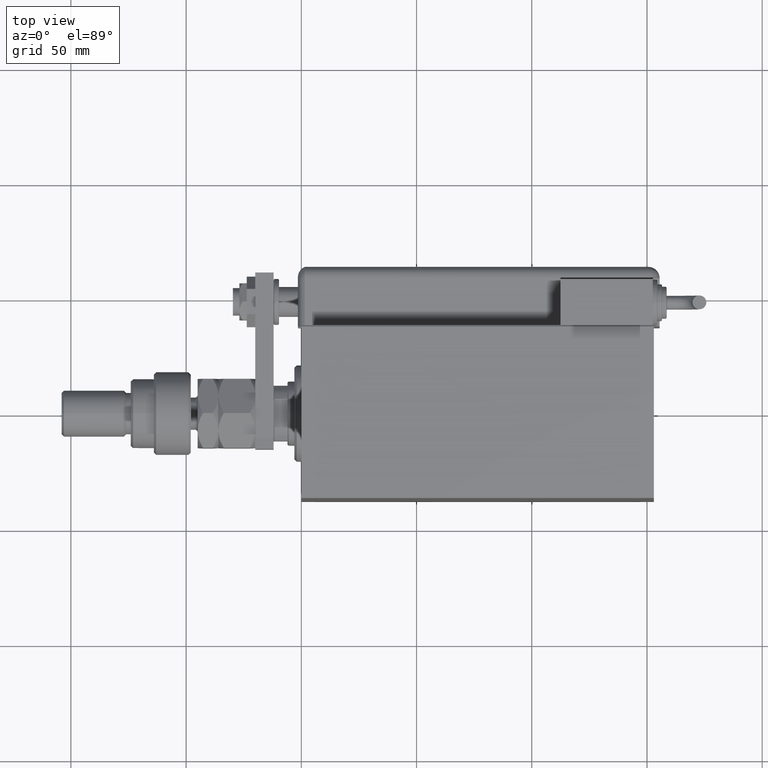
[diagram: clean part render]
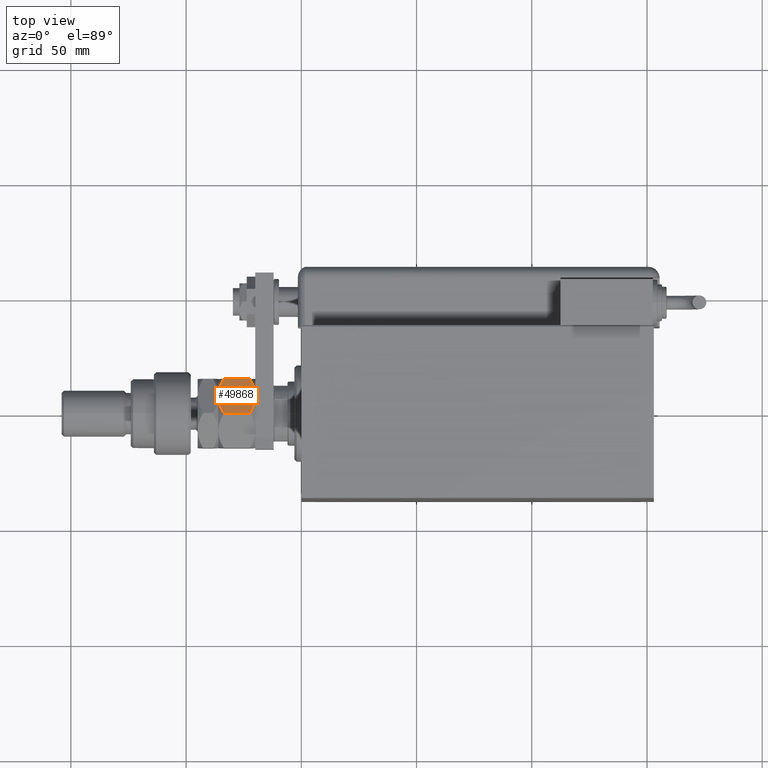
[diagram: same view with one face highlighted and labeled with its STEP entity id]
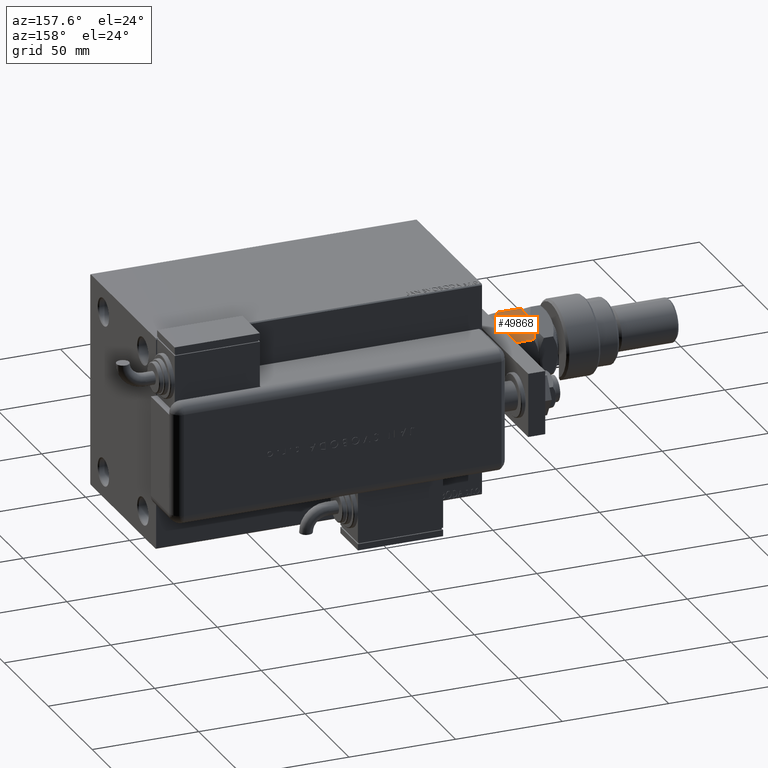
[diagram: same view with one face highlighted and labeled with its STEP entity id]
A machine part, top view. The second image highlights one B-rep face of the part: STEP entity #49868.
A second angle (auxiliary view) of the same face is appended — the face is thin or edge-on in the first view.
In plain terms, the highlighted planar face has unit normal (-0, -0.5, -0.866).
Its self-contained STEP definition (entity closure, byte-faithful):
#367 = CARTESIAN_POINT ( 'NONE',  ( 7.621669386706803087E-17, 17.32050807568877104, 2.320508075688761718 ) ) ;
#1358 = EDGE_CURVE ( 'NONE', #15728, #30181, #16495, .T. ) ;
#3231 = CARTESIAN_POINT ( 'NONE',  ( 8.156876182308252510, 12.61113341608665728, 16.00000000000000355 ) ) ;
#3999 = FACE_OUTER_BOUND ( 'NONE', #27716, .T. ) ;
#4077 = CARTESIAN_POINT ( 'NONE',  ( 15.00000000000000000, 8.660254037844389075, 2.320508075688765715 ) ) ;
#4185 = CARTESIAN_POINT ( 'NONE',  ( 6.176419610670692784, 13.75455055083996214, 0.05953537397470201609 ) ) ;
#4759 = EDGE_CURVE ( 'NONE', #23420, #25818, #10175, .T. ) ;
#7951 = CARTESIAN_POINT ( 'NONE',  ( 0.000000000000000000, 17.32050807568877104, 16.00000000000000000 ) ) ;
#8025 = CARTESIAN_POINT ( 'NONE',  ( 10.75222765045651663, 11.11270654730956586, 15.55242859148697576 ) ) ;
#9641 = CARTESIAN_POINT ( 'NONE',  ( 1.174746544192161846, 16.64226784216984356, 14.35773215783022572 ) ) ;
#10175 = B_SPLINE_CURVE_WITH_KNOTS ( 'NONE', 3,
 ( #367, #43412, #29380, #19812, #57155, #4185, #13446, #32887 ),
 .UNSPECIFIED., .F., .F.,
 ( 4, 2, 2, 4 ),
 ( 2.544309033652185071E-07, 0.004488823491893902638, 0.006733108022389172782, 0.008977392552884443794 ),
 .UNSPECIFIED. ) ;
#13446 = CARTESIAN_POINT ( 'NONE',  ( 6.843123817691747490, 13.36962869744650639, -3.557538378468061917E-16 ) ) ;
#13815 = CARTESIAN_POINT ( 'NONE',  ( 7.621669386706803087E-17, 17.32050807568877104, 2.320508075688761718 ) ) ;
#15255 = AXIS2_PLACEMENT_3D ( 'NONE', #32394, #38098, #52799 ) ;
#15610 = EDGE_CURVE ( 'NONE', #30181, #46132, #18228, .T. ) ;
#15671 = CARTESIAN_POINT ( 'NONE',  ( 6.195449321423087241, 13.74356374221446764, 16.00000000000000355 ) ) ;
#15728 = VERTEX_POINT ( 'NONE', #44989 ) ;
#16495 = B_SPLINE_CURVE_WITH_KNOTS ( 'NONE', 3,
 ( #61291, #22677, #51717, #8025, #46918, #61603, #3231, #37343 ),
 .UNSPECIFIED., .F., .F.,
 ( 4, 2, 2, 4 ),
 ( 2.544309033641602453E-07, 0.004488823491893906975, 0.006733108022389177119, 0.008977392552884448998 ),
 .UNSPECIFIED. ) ;
#17759 = EDGE_CURVE ( 'NONE', #46132, #23420, #52257, .T. ) ;
#18228 = B_SPLINE_CURVE_WITH_KNOTS ( 'NONE', 3,
 ( #19839, #15671, #34811, #58770, #9641, #23980 ),
 .UNSPECIFIED., .F., .F.,
 ( 4, 2, 4 ),
 ( 0.008977392552884448998, 0.01343452311421656706, 0.01789165367554868338 ),
 .UNSPECIFIED. ) ;
#18642 = ORIENTED_EDGE ( 'NONE', *, *, #26523, .F. ) ;
#19812 = CARTESIAN_POINT ( 'NONE',  ( 4.247772349543482484, 14.86805556622358893, 0.4475714085130255149 ) ) ;
#19839 = CARTESIAN_POINT ( 'NONE',  ( 7.500000000000000000, 12.99038105676657651, 16.00000000000000000 ) ) ;
#20057 = ORIENTED_EDGE ( 'NONE', *, *, #4759, .F. ) ;
#22677 = CARTESIAN_POINT ( 'NONE',  ( 13.82389157469336283, 9.339280553791368789, 14.35851844025821400 ) ) ;
#23420 = VERTEX_POINT ( 'NONE', #13815 ) ;
#23950 = VERTEX_POINT ( 'NONE', #34500 ) ;
#23980 = CARTESIAN_POINT ( 'NONE',  ( 3.803331551779305683E-16, 17.32050807568877104, 13.67949192431124317 ) ) ;
#25818 = VERTEX_POINT ( 'NONE', #60105 ) ;
#26523 = EDGE_CURVE ( 'NONE', #25818, #23950, #56193, .T. ) ;
#27389 = DIRECTION ( 'NONE',  ( -0.000000000000000000, -0.000000000000000000, -1.000000000000000000 ) ) ;
#27716 = EDGE_LOOP ( 'NONE', ( #20057, #32230, #48438, #48421, #60080, #18642 ) ) ;
#28306 = CARTESIAN_POINT ( 'NONE',  ( 13.82525345580783949, 9.338494271363313004, 1.642267842169781833 ) ) ;
#29246 = CARTESIAN_POINT ( 'NONE',  ( 7.500000000000000000, 12.99038105676657651, 16.00000000000000000 ) ) ;
#29380 = CARTESIAN_POINT ( 'NONE',  ( 2.378834511187503331, 15.94708733029709080, 1.064486067744004671 ) ) ;
#30181 = VERTEX_POINT ( 'NONE', #29246 ) ;
#32230 = ORIENTED_EDGE ( 'NONE', *, *, #17759, .F. ) ;
#32394 = CARTESIAN_POINT ( 'NONE',  ( 15.00000000000000000, 8.660254037844389075, 16.00000000000000000 ) ) ;
#32887 = CARTESIAN_POINT ( 'NONE',  ( 7.499999999999997335, 12.99038105676658184, 0.000000000000000000 ) ) ;
#34500 = CARTESIAN_POINT ( 'NONE',  ( 15.00000000000000000, 8.660254037844389075, 2.320508075688765715 ) ) ;
#34811 = CARTESIAN_POINT ( 'NONE',  ( 4.913081180497409939, 14.48393933357810504, 15.76967007806078946 ) ) ;
#35596 = LINE ( 'NONE', #47839, #55969 ) ;
#36681 = CARTESIAN_POINT ( 'NONE',  ( 3.803331551779305683E-16, 17.32050807568877104, 13.67949192431124317 ) ) ;
#37343 = CARTESIAN_POINT ( 'NONE',  ( 7.500000000000000000, 12.99038105676657651, 16.00000000000000000 ) ) ;
#37483 = PLANE ( 'NONE',  #15255 ) ;
#37561 = CARTESIAN_POINT ( 'NONE',  ( 7.499999999999997335, 12.99038105676658184, 0.000000000000000000 ) ) ;
#38098 = DIRECTION ( 'NONE',  ( -0.4999999999999997780, -0.8660254037844388186, 0.000000000000000000 ) ) ;
#43412 = CARTESIAN_POINT ( 'NONE',  ( 1.176108425306640504, 16.64148155974179843, 1.641481559741787111 ) ) ;
#44989 = CARTESIAN_POINT ( 'NONE',  ( 15.00000000000000000, 8.660254037844389075, 13.67949192431123784 ) ) ;
#45325 = VECTOR ( 'NONE', #27389, 1000.000000000000000 ) ;
#46132 = VERTEX_POINT ( 'NONE', #36681 ) ;
#46918 = CARTESIAN_POINT ( 'NONE',  ( 10.11832554202262457, 11.47869010025374514, 15.71619733805371411 ) ) ;
#47761 = CARTESIAN_POINT ( 'NONE',  ( 12.61607045183964715, 10.03661640420386902, 1.060479031370879843 ) ) ;
#47839 = CARTESIAN_POINT ( 'NONE',  ( 15.00000000000000000, 8.660254037844389075, 16.00000000000000000 ) ) ;
#48421 = ORIENTED_EDGE ( 'NONE', *, *, #1358, .F. ) ;
#48438 = ORIENTED_EDGE ( 'NONE', *, *, #15610, .F. ) ;
#49774 = EDGE_CURVE ( 'NONE', #15728, #23950, #35596, .T. ) ;
#49868 = ADVANCED_FACE ( 'NONE', ( #3999 ), #37483, .F. ) ;
#51717 = CARTESIAN_POINT ( 'NONE',  ( 12.62116548881249756, 10.03367478323606221, 14.93551393225599710 ) ) ;
#52241 = CARTESIAN_POINT ( 'NONE',  ( 8.804550678576910983, 12.23719837131869426, -5.031375706690542042E-16 ) ) ;
#52257 = LINE ( 'NONE', #7951, #45325 ) ;
#52799 = DIRECTION ( 'NONE',  ( 0.8660254037844387076, -0.4999999999999997224, 0.000000000000000000 ) ) ;
#52882 = CARTESIAN_POINT ( 'NONE',  ( 10.08691881950258740, 11.49682277995505331, 0.2303299219392160591 ) ) ;
#55075 = DIRECTION ( 'NONE',  ( -0.000000000000000000, -0.000000000000000000, -1.000000000000000000 ) ) ;
#55969 = VECTOR ( 'NONE', #55075, 1000.000000000000000 ) ;
#56193 = B_SPLINE_CURVE_WITH_KNOTS ( 'NONE', 3,
 ( #37561, #52241, #52882, #47761, #28306, #4077 ),
 .UNSPECIFIED., .F., .F.,
 ( 4, 2, 4 ),
 ( 0.008977392552884443794, 0.01343452311421656532, 0.01789165367554868685 ),
 .UNSPECIFIED. ) ;
#57155 = CARTESIAN_POINT ( 'NONE',  ( 4.881674457977373649, 14.50207201327941320, 0.2838026619462936107 ) ) ;
#58770 = CARTESIAN_POINT ( 'NONE',  ( 2.383929548160350631, 15.94414570932928576, 14.93952096862913059 ) ) ;
#60080 = ORIENTED_EDGE ( 'NONE', *, *, #49774, .T. ) ;
#60105 = CARTESIAN_POINT ( 'NONE',  ( 7.499999999999997335, 12.99038105676658184, 0.000000000000000000 ) ) ;
#61291 = CARTESIAN_POINT ( 'NONE',  ( 15.00000000000000000, 8.660254037844389075, 13.67949192431123784 ) ) ;
#61603 = CARTESIAN_POINT ( 'NONE',  ( 8.823580389329306328, 12.22621156269319798, 15.94046462602529957 ) ) ;